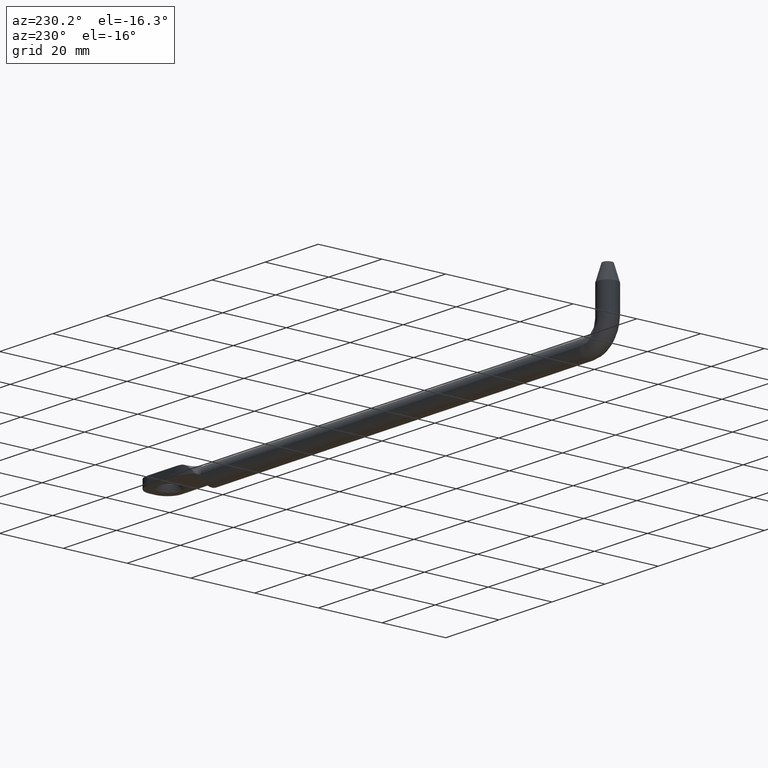
[diagram: clean part render]
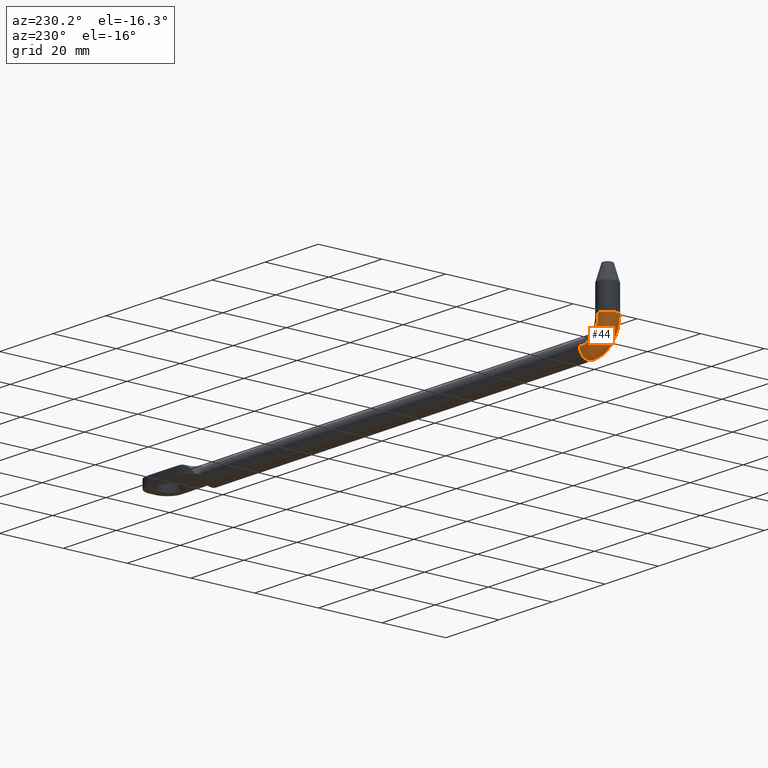
[diagram: same view with one face highlighted and labeled with its STEP entity id]
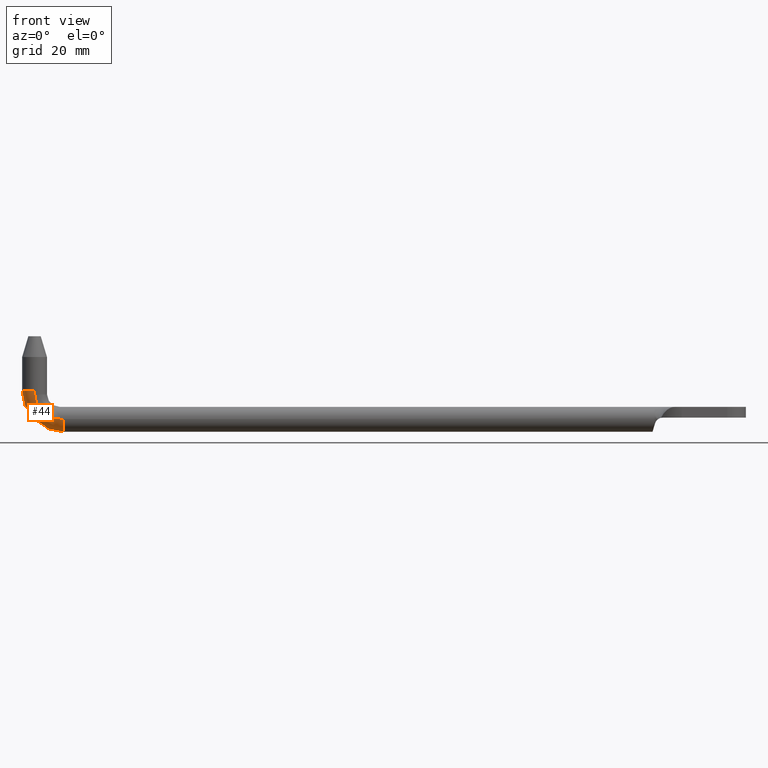
[diagram: same view with one face highlighted and labeled with its STEP entity id]
A machine part, auxiliary view. The second image highlights one B-rep face of the part: STEP entity #44.
A second angle (front view) of the same face is appended — the face is thin or edge-on in the first view.
In plain terms, the highlighted face is a freeform B-spline surface patch.
Its self-contained STEP definition (entity closure, byte-faithful):
#44=ADVANCED_FACE('',(#109),#108,.T.);
#108=( BOUNDED_SURFACE() B_SPLINE_SURFACE( 2,2,((#401,#402,#403,#404,#405),(#406,#407,#408,#409,#410),(#411,#412,#413,#414,#415),(#416,#417,#418,#419,#420),(#421,#422,#423,#424,#425),(#426,#427,#428,#429,#430),(#431,#432,#433,#434,#435),(#436,#437,#438,#439,#440),(#441,#442,#443,#444,#445)), .UNSPECIFIED.,.F.,.F.,.F.) B_SPLINE_SURFACE_WITH_KNOTS((3,2,2,2,3),(3,2,3),(-1.58132510261E+00,-1.57079632679E+00,0.00000000000E+00,1.57079632679E+00,1.57763747448E+00),(4.71033663608E+00,4.71238898038E+00,6.28318530718E+00), .UNSPECIFIED. ) GEOMETRIC_REPRESENTATION_ITEM() RATIONAL_B_SPLINE_SURFACE(((9.95338507324E-01,9.95718702150E-01,9.96099893076E-01,7.04348989133E-01,9.96099893076E-01),(9.97273921214E-01,9.97654855321E-01,9.98036787464E-01,7.05718580290E-01,9.98036787464E-01),(9.99235633135E-01,9.99617316568E-01,1.00000000000E+00,7.07106781187E-01,1.00000000000E+00),(7.06566292193E-01,7.06836183136E-01,7.07106781187E-01,5.00000000000E-01,7.07106781187E-01),(9.99235633135E-01,9.99617316568E-01,1.00000000000E+00,7.07106781187E-01,1.00000000000E+00),(7.06566292193E-01,7.06836183136E-01,7.07106781187E-01,5.00000000000E-01,7.07106781187E-01),(9.99235633135E-01,9.99617316568E-01,1.00000000000E+00,7.07106781187E-01,1.00000000000E+00),(9.97960996729E-01,9.98342193282E-01,9.98724388559E-01,7.06204787686E-01,9.98724388559E-01),(9.96697462941E-01,9.97078176855E-01,9.97459888229E-01,7.05310650928E-01,9.97459888229E-01))) REPRESENTATION_ITEM('') SURFACE() );
#109=FACE_OUTER_BOUND('',#446,.T.);
#401=CARTESIAN_POINT('',(-1.64971495107E+02,-2.99986468861E+00,4.01288658577E+00));
#402=CARTESIAN_POINT('',(-1.64971507018E+02,-2.99986468861E+00,4.00644329839E+00));
#403=CARTESIAN_POINT('',(-1.64971507018E+02,-2.99986468861E+00,4.00000000000E+00));
#404=CARTESIAN_POINT('',(-1.64971507018E+02,-2.99986468861E+00,-2.97150701756E+00));
#405=CARTESIAN_POINT('',(-1.58000000000E+02,-2.99986468861E+00,-2.97150701756E+00));
#406=CARTESIAN_POINT('',(-1.64985741253E+02,-3.00000000000E+00,4.01291291931E+00));
#407=CARTESIAN_POINT('',(-1.64985753188E+02,-3.00000000000E+00,4.00645646517E+00));
#408=CARTESIAN_POINT('',(-1.64985753188E+02,-3.00000000000E+00,4.00000000000E+00));
#409=CARTESIAN_POINT('',(-1.64985753188E+02,-3.00000000000E+00,-2.98575318749E+00));
#410=CARTESIAN_POINT('',(-1.58000000000E+02,-3.00000000000E+00,-2.98575318749E+00));
#411=CARTESIAN_POINT('',(-1.64999988041E+02,-3.00000000000E+00,4.01293925404E+00));
#412=CARTESIAN_POINT('',(-1.65000000000E+02,-3.00000000000E+00,4.00646963255E+00));
#413=CARTESIAN_POINT('',(-1.65000000000E+02,-3.00000000000E+00,4.00000000000E+00));
#414=CARTESIAN_POINT('',(-1.65000000000E+02,-3.00000000000E+00,-3.00000000000E+00));
#415=CARTESIAN_POINT('',(-1.58000000000E+02,-3.00000000000E+00,-3.00000000000E+00));
#416=CARTESIAN_POINT('',(-1.67999982916E+02,-3.00000000000E+00,4.01848464864E+00));
#417=CARTESIAN_POINT('',(-1.68000000000E+02,-3.00000000000E+00,4.00924233221E+00));
#418=CARTESIAN_POINT('',(-1.68000000000E+02,-3.00000000000E+00,4.00000000000E+00));
#419=CARTESIAN_POINT('',(-1.68000000000E+02,-3.00000000000E+00,-6.00000000000E+00));
#420=CARTESIAN_POINT('',(-1.58000000000E+02,-3.00000000000E+00,-6.00000000000E+00));
#421=CARTESIAN_POINT('',(-1.67999982916E+02,0.00000000000E+00,4.01848464864E+00));
#422=CARTESIAN_POINT('',(-1.68000000000E+02,0.00000000000E+00,4.00924233221E+00));
#423=CARTESIAN_POINT('',(-1.68000000000E+02,0.00000000000E+00,4.00000000000E+00));
#424=CARTESIAN_POINT('',(-1.68000000000E+02,0.00000000000E+00,-6.00000000000E+00));
#425=CARTESIAN_POINT('',(-1.58000000000E+02,0.00000000000E+00,-6.00000000000E+00));
#426=CARTESIAN_POINT('',(-1.67999982916E+02,3.00000000000E+00,4.01848464864E+00));
#427=CARTESIAN_POINT('',(-1.68000000000E+02,3.00000000000E+00,4.00924233221E+00));
#428=CARTESIAN_POINT('',(-1.68000000000E+02,3.00000000000E+00,4.00000000000E+00));
#429=CARTESIAN_POINT('',(-1.68000000000E+02,3.00000000000E+00,-6.00000000000E+00));
#430=CARTESIAN_POINT('',(-1.58000000000E+02,3.00000000000E+00,-6.00000000000E+00));
#431=CARTESIAN_POINT('',(-1.64999988041E+02,3.00000000000E+00,4.01293925404E+00));
#432=CARTESIAN_POINT('',(-1.65000000000E+02,3.00000000000E+00,4.00646963255E+00));
#433=CARTESIAN_POINT('',(-1.65000000000E+02,3.00000000000E+00,4.00000000000E+00));
#434=CARTESIAN_POINT('',(-1.65000000000E+02,3.00000000000E+00,-3.00000000000E+00));
#435=CARTESIAN_POINT('',(-1.58000000000E+02,3.00000000000E+00,-3.00000000000E+00));
#436=CARTESIAN_POINT('',(-1.64990737461E+02,3.00000000000E+00,4.01292215464E+00));
#437=CARTESIAN_POINT('',(-1.64990749405E+02,3.00000000000E+00,4.00646108284E+00));
#438=CARTESIAN_POINT('',(-1.64990749405E+02,3.00000000000E+00,4.00000000000E+00));
#439=CARTESIAN_POINT('',(-1.64990749405E+02,3.00000000000E+00,-2.99074940451E+00));
#440=CARTESIAN_POINT('',(-1.58000000000E+02,3.00000000000E+00,-2.99074940451E+00));
#441=CARTESIAN_POINT('',(-1.64981487058E+02,2.99994295153E+00,4.01290505557E+00));
#442=CARTESIAN_POINT('',(-1.64981498985E+02,2.99994295153E+00,4.00645253330E+00));
#443=CARTESIAN_POINT('',(-1.64981498985E+02,2.99994295153E+00,4.00000000000E+00));
#444=CARTESIAN_POINT('',(-1.64981498985E+02,2.99994295153E+00,-2.98149898493E+00));
#445=CARTESIAN_POINT('',(-1.58000000000E+02,2.99994295153E+00,-2.98149898493E+00));
#446=EDGE_LOOP('',(#672,#673,#674,#675,#676,#677,#678,#679,#680,#681));
#672=ORIENTED_EDGE('',*,*,#820,.F.);
#673=ORIENTED_EDGE('',*,*,#821,.F.);
#674=ORIENTED_EDGE('',*,*,#822,.F.);
#675=ORIENTED_EDGE('',*,*,#817,.F.);
#676=ORIENTED_EDGE('',*,*,#823,.T.);
#677=ORIENTED_EDGE('',*,*,#824,.T.);
#678=ORIENTED_EDGE('',*,*,#825,.T.);
#679=ORIENTED_EDGE('',*,*,#826,.T.);
#680=ORIENTED_EDGE('',*,*,#814,.T.);
#681=ORIENTED_EDGE('',*,*,#827,.F.);
#814=EDGE_CURVE('',#972,#973,#974,.T.);
#817=EDGE_CURVE('',#987,#994,#995,.T.);
#820=EDGE_CURVE('',#1014,#1015,#1016,.T.);
#821=EDGE_CURVE('',#1022,#1014,#1023,.T.);
#822=EDGE_CURVE('',#994,#1022,#1029,.T.);
#823=EDGE_CURVE('',#987,#1035,#1036,.T.);
#824=EDGE_CURVE('',#1035,#1042,#1043,.T.);
#825=EDGE_CURVE('',#1042,#1049,#1050,.T.);
#826=EDGE_CURVE('',#1049,#972,#1056,.T.);
#827=EDGE_CURVE('',#1015,#973,#1062,.T.);
#972=VERTEX_POINT('',#1440);
#973=VERTEX_POINT('',#1441);
#974=(BOUNDED_CURVE() B_SPLINE_CURVE(3,(#1442,#1443,#1444,#1445,#1446,#1447,#1448,#1449,#1450,#1451,#1452,#1453,#1454,#1455,#1456,#1457,#1458,#1459,#1460,#1461,#1462,#1463),.UNSPECIFIED.,.F.,.F.) B_SPLINE_CURVE_WITH_KNOTS((4,2,2,2,2,2,2,2,2,2,4),(-9.15022307947E-03,-8.00646990260E-03,-6.86271672572E-03,-6.29084013728E-03,-5.71896354884E-03,-4.57521037196E-03,-4.00333378352E-03,-3.43145719508E-03,-2.28770401820E-03,-1.14395084132E-03,-1.97664436019E-07),.UNSPECIFIED.) CURVE() GEOMETRIC_REPRESENTATION_ITEM() RATIONAL_B_SPLINE_CURVE((1.00000000000E+00,1.00000000000E+00,1.00000000000E+00,1.00000000000E+00,1.00000000000E+00,1.00000000000E+00,1.00000000000E+00,1.00000000000E+00,1.00000000000E+00,1.00000000000E+00,1.00000000000E+00,1.00000000000E+00,1.00000000000E+00,1.00000000000E+00,1.00000000000E+00,1.00000000000E+00,1.00000000000E+00,1.00000000000E+00,1.00000000000E+00,1.00000000000E+00,1.00000000000E+00,1.00000000000E+00)) REPRESENTATION_ITEM('') );
#987=VERTEX_POINT('',#1469);
#994=VERTEX_POINT('',#1474);
#995=(BOUNDED_CURVE() B_SPLINE_CURVE(3,(#1475,#1476,#1477,#1478,#1479,#1480,#1481,#1482,#1483,#1484,#1485,#1486,#1487,#1488,#1489,#1490,#1491,#1492,#1493,#1494,#1495,#1496),.UNSPECIFIED.,.F.,.F.) B_SPLINE_CURVE_WITH_KNOTS((4,2,2,2,2,2,2,2,2,2,4),(-9.15022307947E-03,-8.00646990260E-03,-6.86271672572E-03,-6.29084013728E-03,-5.71896354884E-03,-4.57521037196E-03,-4.00333378352E-03,-3.43145719508E-03,-2.28770401820E-03,-1.14395084132E-03,-1.97664436104E-07),.UNSPECIFIED.) CURVE() GEOMETRIC_REPRESENTATION_ITEM() RATIONAL_B_SPLINE_CURVE((1.00000000000E+00,1.00000000000E+00,1.00000000000E+00,1.00000000000E+00,1.00000000000E+00,1.00000000000E+00,1.00000000000E+00,1.00000000000E+00,1.00000000000E+00,1.00000000000E+00,1.00000000000E+00,1.00000000000E+00,1.00000000000E+00,1.00000000000E+00,1.00000000000E+00,1.00000000000E+00,1.00000000000E+00,1.00000000000E+00,1.00000000000E+00,1.00000000000E+00,1.00000000000E+00,1.00000000000E+00)) REPRESENTATION_ITEM('') );
#1014=VERTEX_POINT('',#1506);
#1015=VERTEX_POINT('',#1507);
#1016=CIRCLE('',#1511,3.00000000000E+00);
#1022=VERTEX_POINT('',#1512);
#1023=CIRCLE('',#1516,3.00000000000E+00);
#1029=(BOUNDED_CURVE() B_SPLINE_CURVE(3,(#1517,#1518,#1519,#1520),.UNSPECIFIED.,.F.,.F.) B_SPLINE_CURVE_WITH_KNOTS((4,4),(-8.82567373458E-04,1.18322652100E-04),.UNSPECIFIED.) CURVE() GEOMETRIC_REPRESENTATION_ITEM() RATIONAL_B_SPLINE_CURVE((1.00000000000E+00,1.00000000000E+00,1.00000000000E+00,1.00000000000E+00)) REPRESENTATION_ITEM('') );
#1035=VERTEX_POINT('',#1521);
#1036=(BOUNDED_CURVE() B_SPLINE_CURVE(3,(#1522,#1523,#1524,#1525),.UNSPECIFIED.,.F.,.F.) B_SPLINE_CURVE_WITH_KNOTS((4,4),(-8.82567373457E-04,1.18322652100E-04),.UNSPECIFIED.) CURVE() GEOMETRIC_REPRESENTATION_ITEM() RATIONAL_B_SPLINE_CURVE((1.00000000000E+00,1.00000000000E+00,1.00000000000E+00,1.00000000000E+00)) REPRESENTATION_ITEM('') );
#1042=VERTEX_POINT('',#1526);
#1043=CIRCLE('',#1530,3.00000000000E+00);
#1049=VERTEX_POINT('',#1531);
#1050=CIRCLE('',#1535,3.00000000000E+00);
#1056=(BOUNDED_CURVE() B_SPLINE_CURVE(3,(#1536,#1537,#1538,#1539),.UNSPECIFIED.,.F.,.F.) B_SPLINE_CURVE_WITH_KNOTS((4,4),(-1.18322652100E-04,8.82567373457E-04),.UNSPECIFIED.) CURVE() GEOMETRIC_REPRESENTATION_ITEM() RATIONAL_B_SPLINE_CURVE((1.00000000000E+00,1.00000000000E+00,1.00000000000E+00,1.00000000000E+00)) REPRESENTATION_ITEM('') );
#1062=(BOUNDED_CURVE() B_SPLINE_CURVE(3,(#1540,#1541,#1542,#1543),.UNSPECIFIED.,.F.,.F.) B_SPLINE_CURVE_WITH_KNOTS((4,4),(-1.18322652100E-04,8.82567373458E-04),.UNSPECIFIED.) CURVE() GEOMETRIC_REPRESENTATION_ITEM() RATIONAL_B_SPLINE_CURVE((1.00000000000E+00,1.00000000000E+00,1.00000000000E+00,1.00000000000E+00)) REPRESENTATION_ITEM('') );
#1440=CARTESIAN_POINT('',(-1.64964285714E+02,2.99978740743E+00,3.00000000000E+00));
#1441=CARTESIAN_POINT('',(-1.59000000000E+02,2.99978740743E+00,-2.96428571429E+00));
#1442=CARTESIAN_POINT('',(-1.64964285714E+02,2.99978740743E+00,3.00000000000E+00));
#1443=CARTESIAN_POINT('',(-1.64936731365E+02,2.99945935622E+00,2.61423910599E+00));
#1444=CARTESIAN_POINT('',(-1.64874267248E+02,2.99878612852E+00,2.23114993271E+00));
#1445=CARTESIAN_POINT('',(-1.64685084320E+02,2.99724216707E+00,1.49060570414E+00));
#1446=CARTESIAN_POINT('',(-1.64558419038E+02,2.99636930462E+00,1.13086843578E+00));
#1447=CARTESIAN_POINT('',(-1.64319630417E+02,2.99517815416E+00,6.07287566438E-01));
#1448=CARTESIAN_POINT('',(-1.64231338693E+02,2.99479846872E+00,4.34606230842E-01));
#1449=CARTESIAN_POINT('',(-1.64040872651E+02,2.99412467937E+00,1.00188101807E-01));
#1450=CARTESIAN_POINT('',(-1.63938736582E+02,2.99382993481E+00,-6.17261120681E-02));
#1451=CARTESIAN_POINT('',(-1.63612111177E+02,2.99310656202E+00,-5.31961585920E-01));
#1452=CARTESIAN_POINT('',(-1.63367563112E+02,2.99284220785E+00,-8.24897232201E-01));
#1453=CARTESIAN_POINT('',(-1.62959604241E+02,2.99284278489E+00,-1.23274769953E+00));
#1454=CARTESIAN_POINT('',(-1.62816321409E+02,2.99290925940E+00,-1.36362513965E+00));
#1455=CARTESIAN_POINT('',(-1.62521566599E+02,2.99316577206E+00,-1.60951935967E+00));
#1456=CARTESIAN_POINT('',(-1.62369465562E+02,2.99335545024E+00,-1.72522851969E+00));
#1457=CARTESIAN_POINT('',(-1.61899270226E+02,2.99408207006E+00,-2.05106921220E+00));
#1458=CARTESIAN_POINT('',(-1.61567394509E+02,2.99478059026E+00,-2.24008372934E+00));
#1459=CARTESIAN_POINT('',(-1.60865644342E+02,2.99637739970E+00,-2.55988861258E+00));
#1460=CARTESIAN_POINT('',(-1.60502217780E+02,2.99725858603E+00,-2.68731716424E+00));
#1461=CARTESIAN_POINT('',(-1.59763219449E+02,2.99879638574E+00,-2.87529918917E+00));
#1462=CARTESIAN_POINT('',(-1.59385754402E+02,2.99945936174E+00,-2.93673182844E+00));
#1463=CARTESIAN_POINT('',(-1.59000000000E+02,2.99978740743E+00,-2.96428571429E+00));
#1469=CARTESIAN_POINT('',(-1.64964285714E+02,-2.99978740743E+00,3.00000000000E+00));
#1474=CARTESIAN_POINT('',(-1.59000000000E+02,-2.99978740743E+00,-2.96428571429E+00));
#1475=CARTESIAN_POINT('',(-1.64964285714E+02,-2.99978740743E+00,3.00000000000E+00));
#1476=CARTESIAN_POINT('',(-1.64936731365E+02,-2.99945935622E+00,2.61423910599E+00));
#1477=CARTESIAN_POINT('',(-1.64874267248E+02,-2.99878612852E+00,2.23114993271E+00));
#1478=CARTESIAN_POINT('',(-1.64685084320E+02,-2.99724216707E+00,1.49060570414E+00));
#1479=CARTESIAN_POINT('',(-1.64558419038E+02,-2.99636930462E+00,1.13086843578E+00));
#1480=CARTESIAN_POINT('',(-1.64319630417E+02,-2.99517815416E+00,6.07287566438E-01));
#1481=CARTESIAN_POINT('',(-1.64231338693E+02,-2.99479846872E+00,4.34606230842E-01));
#1482=CARTESIAN_POINT('',(-1.64040872651E+02,-2.99412467937E+00,1.00188101807E-01));
#1483=CARTESIAN_POINT('',(-1.63938736582E+02,-2.99382993481E+00,-6.17261120681E-02));
#1484=CARTESIAN_POINT('',(-1.63612111177E+02,-2.99310656202E+00,-5.31961585920E-01));
#1485=CARTESIAN_POINT('',(-1.63367563112E+02,-2.99284220785E+00,-8.24897232201E-01));
#1486=CARTESIAN_POINT('',(-1.62959604241E+02,-2.99284278489E+00,-1.23274769953E+00));
#1487=CARTESIAN_POINT('',(-1.62816321409E+02,-2.99290925940E+00,-1.36362513965E+00));
#1488=CARTESIAN_POINT('',(-1.62521566599E+02,-2.99316577206E+00,-1.60951935967E+00));
#1489=CARTESIAN_POINT('',(-1.62369465562E+02,-2.99335545024E+00,-1.72522851969E+00));
#1490=CARTESIAN_POINT('',(-1.61899270226E+02,-2.99408207006E+00,-2.05106921220E+00));
#1491=CARTESIAN_POINT('',(-1.61567394509E+02,-2.99478059026E+00,-2.24008372934E+00));
#1492=CARTESIAN_POINT('',(-1.60865644342E+02,-2.99637739970E+00,-2.55988861258E+00));
#1493=CARTESIAN_POINT('',(-1.60502217780E+02,-2.99725858603E+00,-2.68731716424E+00));
#1494=CARTESIAN_POINT('',(-1.59763219449E+02,-2.99879638574E+00,-2.87529918917E+00));
#1495=CARTESIAN_POINT('',(-1.59385754402E+02,-2.99945936174E+00,-2.93673182844E+00));
#1496=CARTESIAN_POINT('',(-1.59000000000E+02,-2.99978740743E+00,-2.96428571429E+00));
#1506=CARTESIAN_POINT('',(-1.58000000000E+02,4.05514949428E-07,-6.00000000000E+00));
#1507=CARTESIAN_POINT('',(-1.58000000000E+02,3.00000000000E+00,-3.00000000000E+00));
#1508=CARTESIAN_POINT('',(-1.58000000000E+02,0.00000000000E+00,-3.00000000000E+00));
#1509=DIRECTION('',(1.00000000000E+00,0.00000000000E+00,0.00000000000E+00));
#1510=DIRECTION('',(-0.00000000000E+00,1.55692757647E-10,1.00000000000E+00));
#1511=AXIS2_PLACEMENT_3D('',#1508,#1509,#1510);
#1512=CARTESIAN_POINT('',(-1.58000000000E+02,-3.00000000000E+00,-3.00000000000E+00));
#1513=CARTESIAN_POINT('',(-1.58000000000E+02,0.00000000000E+00,-3.00000000000E+00));
#1514=DIRECTION('',(1.00000000000E+00,0.00000000000E+00,0.00000000000E+00));
#1515=DIRECTION('',(-0.00000000000E+00,1.55692757647E-10,1.00000000000E+00));
#1516=AXIS2_PLACEMENT_3D('',#1513,#1514,#1515);
#1517=CARTESIAN_POINT('',(-1.59000000000E+02,-2.99978740743E+00,-2.96428571429E+00));
#1518=CARTESIAN_POINT('',(-1.58667289934E+02,-3.00007034421E+00,-2.98805071897E+00));
#1519=CARTESIAN_POINT('',(-1.58333627030E+02,-3.00000000000E+00,-2.99859016848E+00));
#1520=CARTESIAN_POINT('',(-1.58000000000E+02,-3.00000000000E+00,-3.00000000000E+00));
#1521=CARTESIAN_POINT('',(-1.65000000000E+02,-3.00000000000E+00,4.00000000000E+00));
#1522=CARTESIAN_POINT('',(-1.64964285714E+02,-2.99978740743E+00,3.00000000000E+00));
#1523=CARTESIAN_POINT('',(-1.64988050719E+02,-3.00007034421E+00,3.33271006563E+00));
#1524=CARTESIAN_POINT('',(-1.64998590168E+02,-3.00000000000E+00,3.66637297028E+00));
#1525=CARTESIAN_POINT('',(-1.65000000000E+02,-3.00000000000E+00,4.00000000000E+00));
#1526=CARTESIAN_POINT('',(-1.68000000000E+02,4.67070920933E-10,4.00000000000E+00));
#1527=CARTESIAN_POINT('',(-1.65000000000E+02,0.00000000000E+00,4.00000000000E+00));
#1528=DIRECTION('',(0.00000000000E+00,0.00000000000E+00,-1.00000000000E+00));
#1529=DIRECTION('',(-0.00000000000E+00,1.00000000000E+00,-0.00000000000E+00));
#1530=AXIS2_PLACEMENT_3D('',#1527,#1528,#1529);
#1531=CARTESIAN_POINT('',(-1.65000000000E+02,3.00000000000E+00,4.00000000000E+00));
#1532=CARTESIAN_POINT('',(-1.65000000000E+02,0.00000000000E+00,4.00000000000E+00));
#1533=DIRECTION('',(0.00000000000E+00,0.00000000000E+00,-1.00000000000E+00));
#1534=DIRECTION('',(-0.00000000000E+00,1.00000000000E+00,-0.00000000000E+00));
#1535=AXIS2_PLACEMENT_3D('',#1532,#1533,#1534);
#1536=CARTESIAN_POINT('',(-1.65000000000E+02,3.00000000000E+00,4.00000000000E+00));
#1537=CARTESIAN_POINT('',(-1.64998590168E+02,3.00000000000E+00,3.66637297028E+00));
#1538=CARTESIAN_POINT('',(-1.64988050719E+02,3.00007034421E+00,3.33271006563E+00));
#1539=CARTESIAN_POINT('',(-1.64964285714E+02,2.99978740743E+00,3.00000000000E+00));
#1540=CARTESIAN_POINT('',(-1.58000000000E+02,3.00000000000E+00,-3.00000000000E+00));
#1541=CARTESIAN_POINT('',(-1.58333627030E+02,3.00000000000E+00,-2.99859016848E+00));
#1542=CARTESIAN_POINT('',(-1.58667289934E+02,3.00007034421E+00,-2.98805071897E+00));
#1543=CARTESIAN_POINT('',(-1.59000000000E+02,2.99978740743E+00,-2.96428571429E+00));